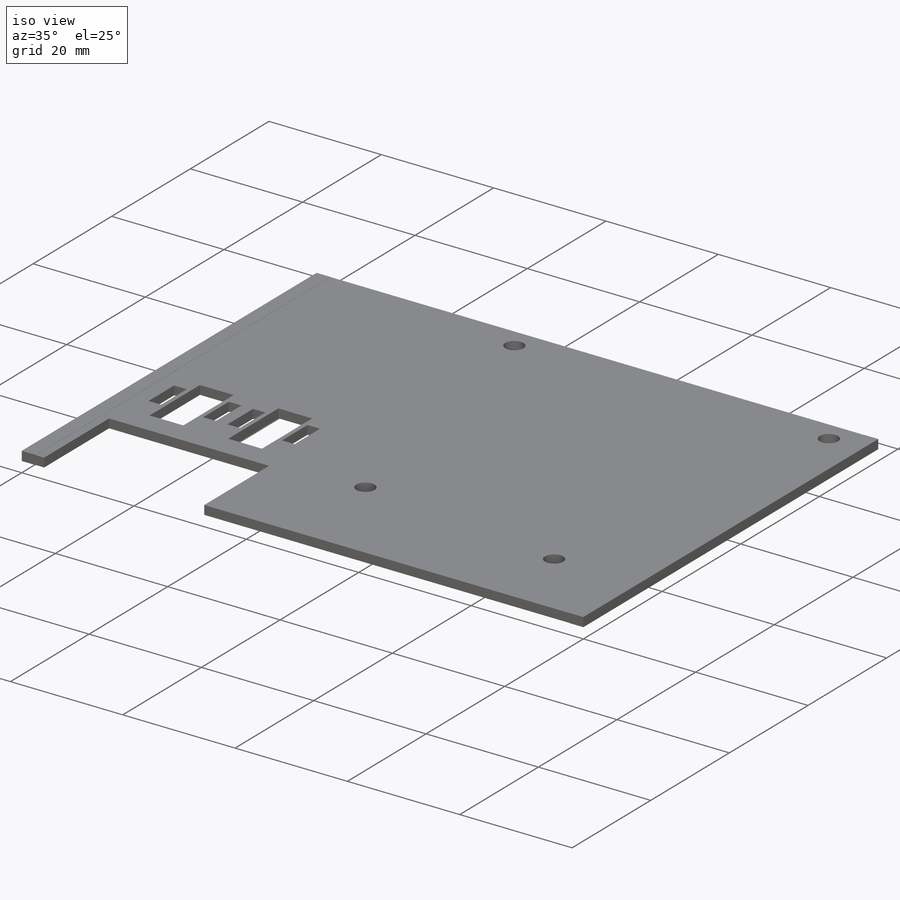
[diagram: iso view]
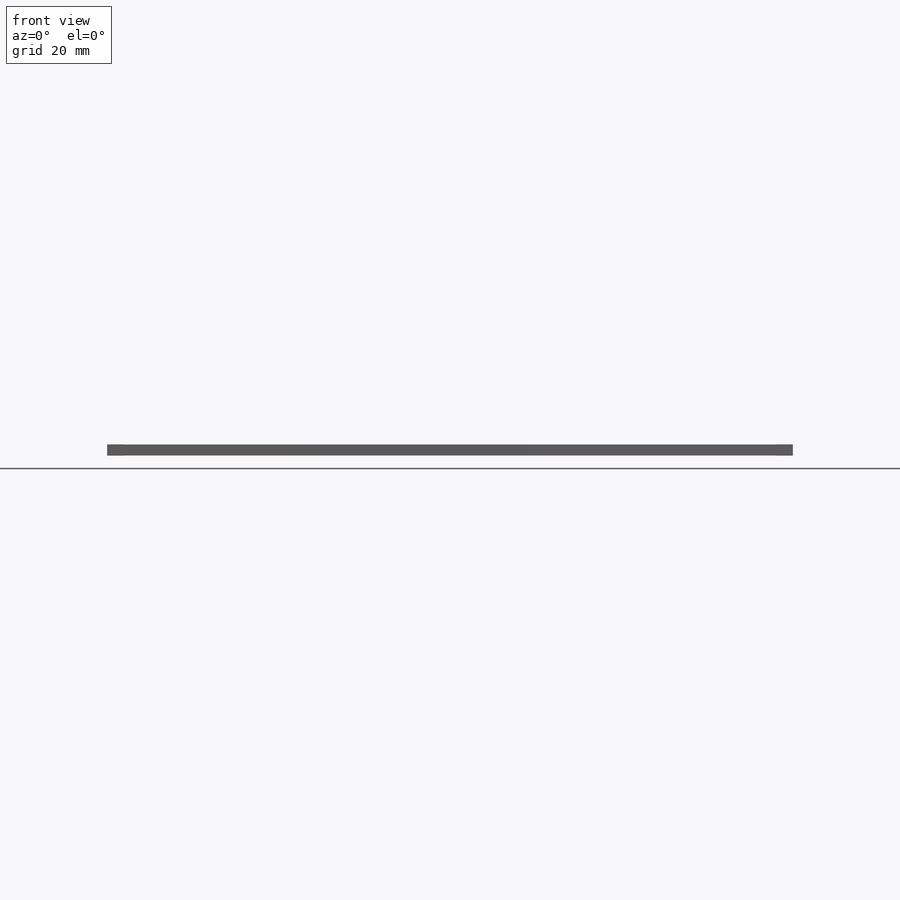
[diagram: front view]
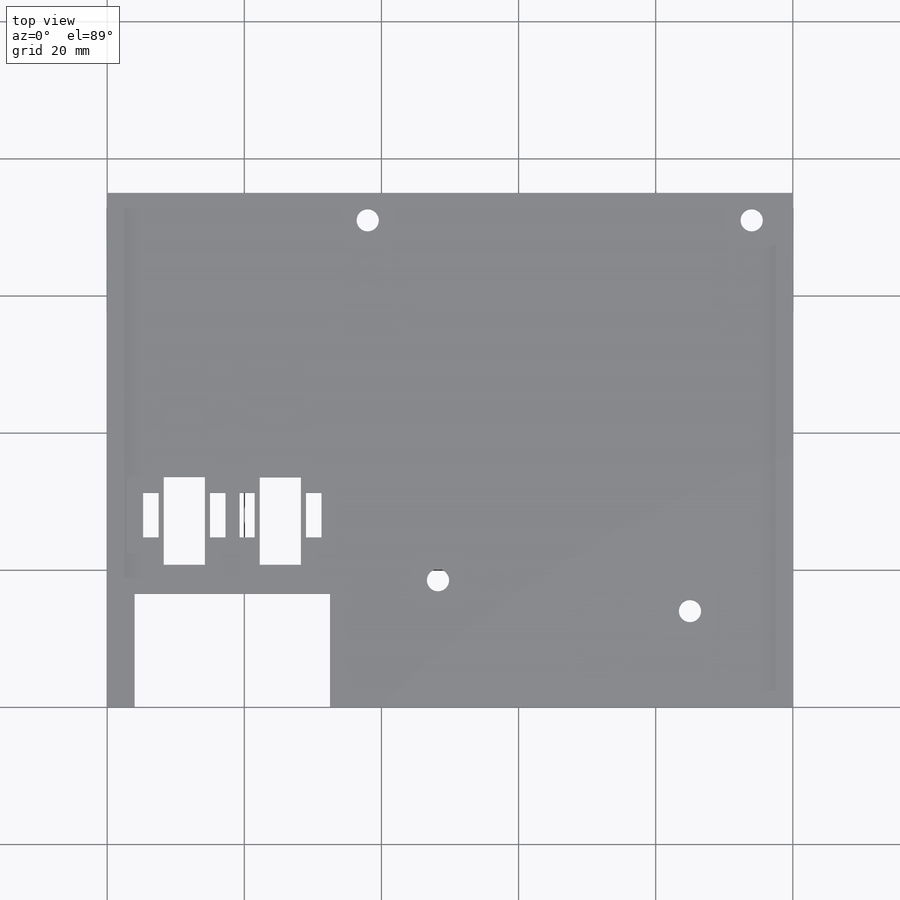
[diagram: top view]
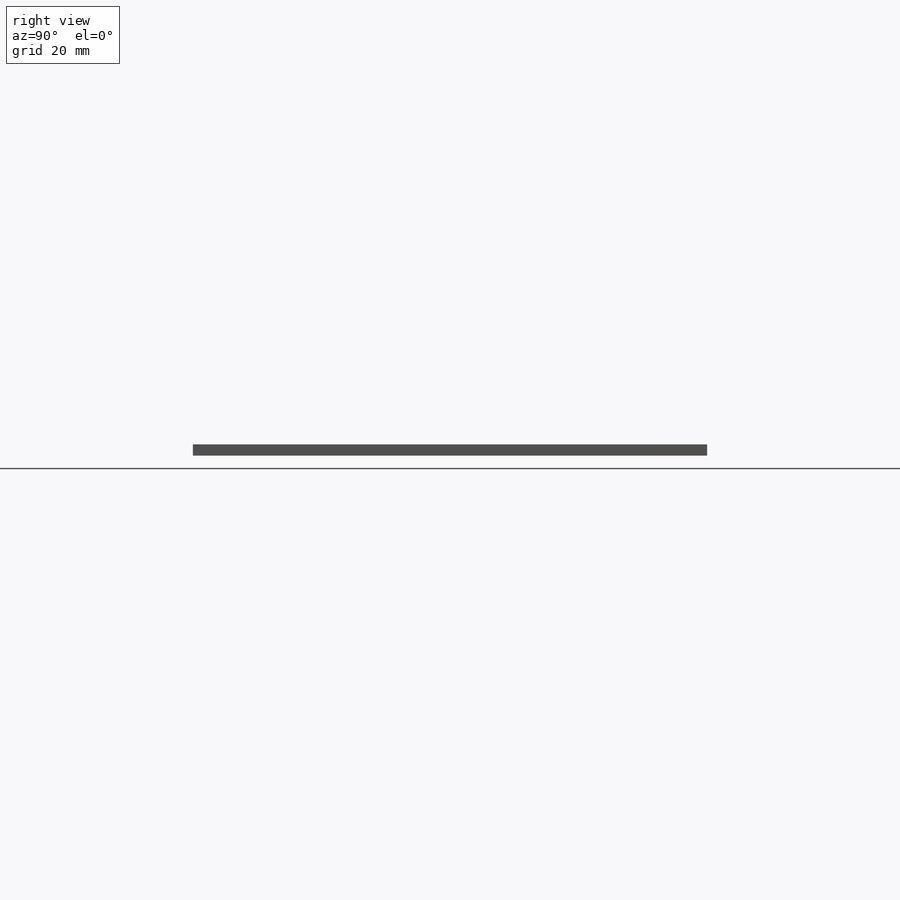
[diagram: right view]
SOLIDWORKS PART (.sldprt)
format: sldprt  version: not decoded by parser v0  size: 389,632 bytes
history: native  units: mm
features: sketch x4, extrude x3, material x1, cut_extrude x1, plane x1 (+12 scaffold rows collapsed)
feature tree (22):
  scaffold x12  (default folders/planes/origin — collapsed)
  material  "Material <not specified>"
  sketch  "Sketch1"  dims[D1=16.5mm]
  extrude  "Boss-Extrude1"  Depth=1.5875mm
  sketch  "Sketch2"  dims[D1=3.2512mm]
  cut_extrude  "Cut-Extrude1"  Depth=1.5875mm
  sketch  "Sketch3"
  extrude  "Boss-Extrude2"  Depth=0.025mm
  sketch  "Sketch5"
  extrude  "Boss-Extrude3"  Depth=0.025mm
  plane  "center-of-slot"
decode coverage: 6 of 8 modeling features carry decoded parameters
note: suppression state not decoded; provenance and decode notes live in map.json
